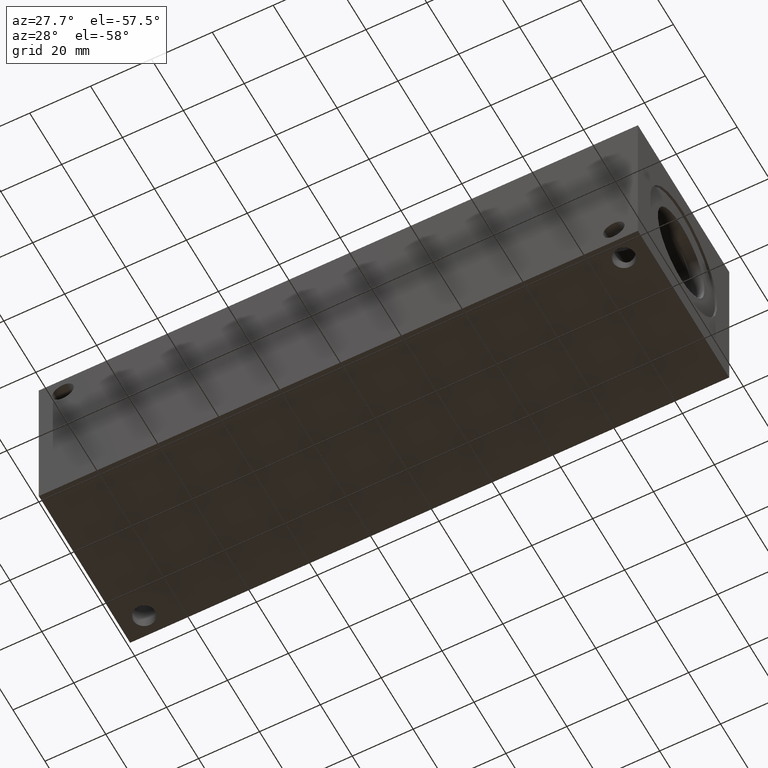
[diagram: clean part render]
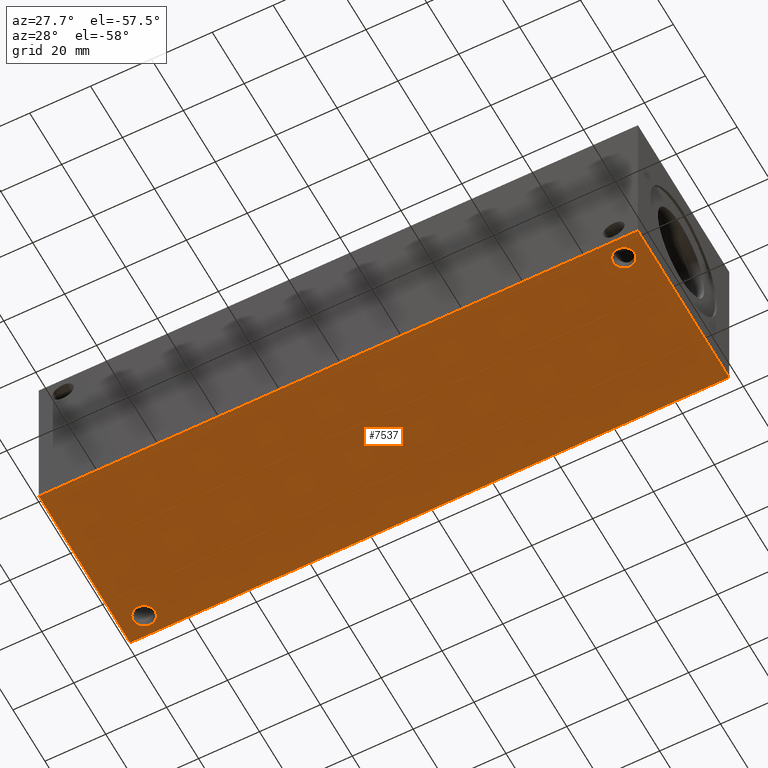
[diagram: same view with one face highlighted and labeled with its STEP entity id]
A machine part, auxiliary view. The second image highlights one B-rep face of the part: STEP entity #7537.
In plain terms, the highlighted planar face has unit normal (0, 0, 1).
Its self-contained STEP definition (entity closure, byte-faithful):
#171=CIRCLE('',#7914,3.5687);
#172=CIRCLE('',#7916,3.5687);
#223=FACE_BOUND('',#1253,.T.);
#224=FACE_BOUND('',#1254,.T.);
#436=PLANE('',#7922);
#819=FACE_OUTER_BOUND('',#1252,.T.);
#1252=EDGE_LOOP('',(#6718,#6719,#6720,#6721));
#1253=EDGE_LOOP('',(#6722));
#1254=EDGE_LOOP('',(#6723));
#1931=LINE('',#13115,#2615);
#1934=LINE('',#13120,#2618);
#1936=LINE('',#13124,#2620);
#1938=LINE('',#13127,#2622);
#2615=VECTOR('',#9333,10.);
#2618=VECTOR('',#9338,10.);
#2620=VECTOR('',#9342,10.);
#2622=VECTOR('',#9346,10.);
#3574=VERTEX_POINT('',#13105);
#3575=VERTEX_POINT('',#13109);
#3576=VERTEX_POINT('',#13113);
#3577=VERTEX_POINT('',#13114);
#3578=VERTEX_POINT('',#13119);
#3579=VERTEX_POINT('',#13123);
#4617=EDGE_CURVE('',#3574,#3574,#171,.T.);
#4619=EDGE_CURVE('',#3575,#3575,#172,.T.);
#4620=EDGE_CURVE('',#3576,#3577,#1931,.T.);
#4623=EDGE_CURVE('',#3578,#3576,#1934,.T.);
#4625=EDGE_CURVE('',#3579,#3578,#1936,.T.);
#4627=EDGE_CURVE('',#3577,#3579,#1938,.T.);
#6718=ORIENTED_EDGE('',*,*,#4627,.F.);
#6719=ORIENTED_EDGE('',*,*,#4620,.F.);
#6720=ORIENTED_EDGE('',*,*,#4623,.F.);
#6721=ORIENTED_EDGE('',*,*,#4625,.F.);
#6722=ORIENTED_EDGE('',*,*,#4617,.T.);
#6723=ORIENTED_EDGE('',*,*,#4619,.T.);
#7537=ADVANCED_FACE('',(#819,#223,#224),#436,.F.);
#7914=AXIS2_PLACEMENT_3D('',#13107,#9324,#9325);
#7916=AXIS2_PLACEMENT_3D('',#13111,#9329,#9330);
#7922=AXIS2_PLACEMENT_3D('',#13129,#9349,#9350);
#9324=DIRECTION('center_axis',(0.,0.,1.));
#9325=DIRECTION('ref_axis',(1.,0.,0.));
#9329=DIRECTION('center_axis',(0.,0.,1.));
#9330=DIRECTION('ref_axis',(1.,0.,0.));
#9333=DIRECTION('',(0.,-1.,0.));
#9338=DIRECTION('',(-1.,0.,0.));
#9342=DIRECTION('',(0.,1.,0.));
#9346=DIRECTION('',(1.,0.,0.));
#9349=DIRECTION('center_axis',(0.,0.,1.));
#9350=DIRECTION('ref_axis',(1.,0.,0.));
#13105=CARTESIAN_POINT('',(185.3565,6.35,0.));
#13107=CARTESIAN_POINT('Origin',(188.9252,6.35,0.));
#13109=CARTESIAN_POINT('',(4.3561,50.8,0.));
#13111=CARTESIAN_POINT('Origin',(7.9248,50.8,0.));
#13113=CARTESIAN_POINT('',(0.,57.15,0.));
#13114=CARTESIAN_POINT('',(0.,0.,0.));
#13115=CARTESIAN_POINT('',(0.,57.15,0.));
#13119=CARTESIAN_POINT('',(196.85,57.15,0.));
#13120=CARTESIAN_POINT('',(196.85,57.15,0.));
#13123=CARTESIAN_POINT('',(196.85,0.,0.));
#13124=CARTESIAN_POINT('',(196.85,0.,0.));
#13127=CARTESIAN_POINT('',(0.,0.,0.));
#13129=CARTESIAN_POINT('Origin',(98.425,28.575,0.));